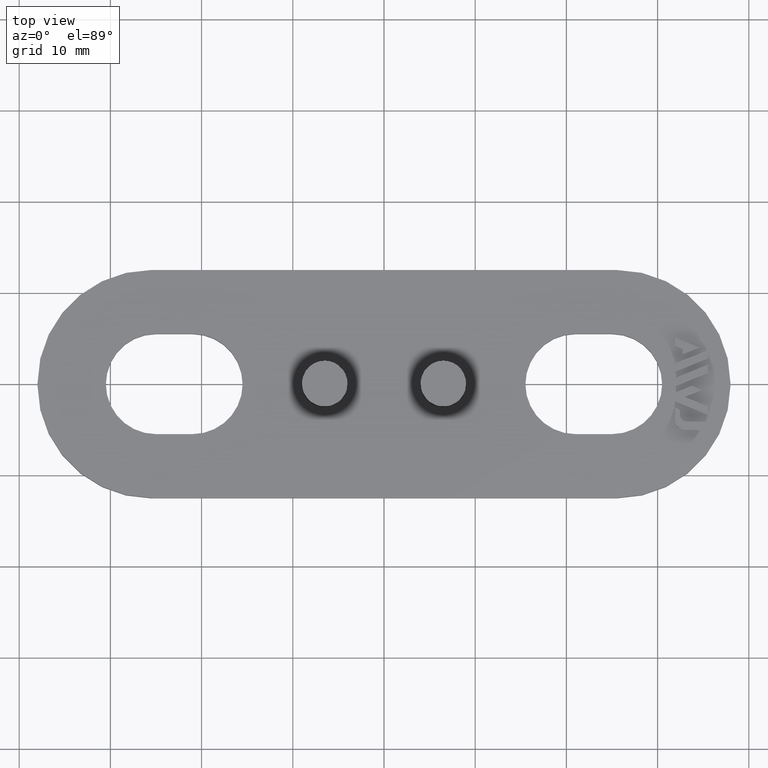
[diagram: clean part render]
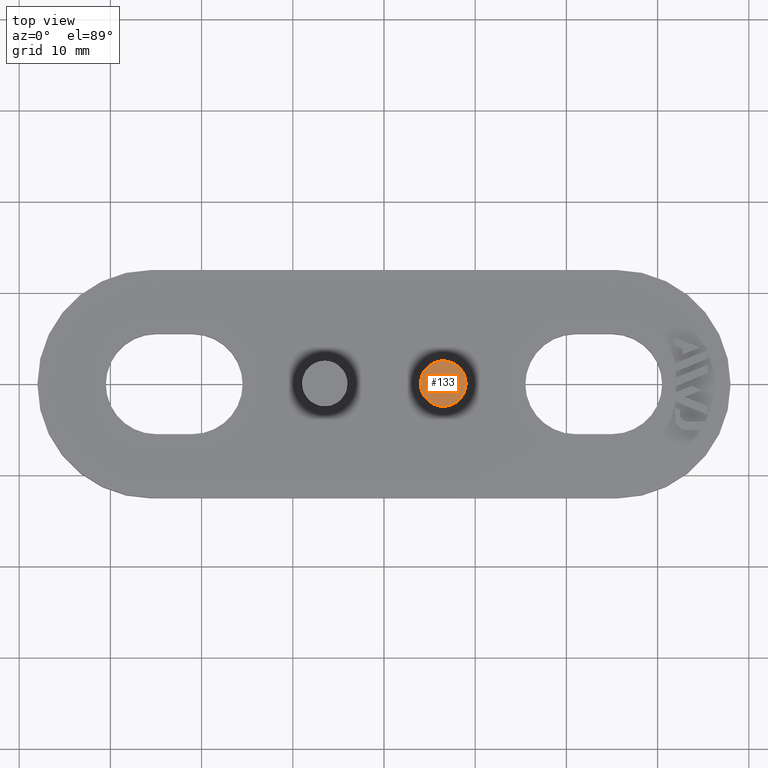
[diagram: same view with one face highlighted and labeled with its STEP entity id]
A machine part, top view. The second image highlights one B-rep face of the part: STEP entity #133.
In plain terms, the highlighted planar face has unit normal (0, -0, -1).
Its self-contained STEP definition (entity closure, byte-faithful):
#133 = ADVANCED_FACE( '', ( #276 ), #277, .F. );
#276 = FACE_OUTER_BOUND( '', #433, .T. );
#277 = PLANE( '', #434 );
#433 = EDGE_LOOP( '', ( #949 ) );
#434 = AXIS2_PLACEMENT_3D( '', #950, #951, #952 );
#949 = ORIENTED_EDGE( '', *, *, #1200, .F. );
#950 = CARTESIAN_POINT( '', ( 6.50000000000000, 3.36766747301154E-016, 5.50000000000001 ) );
#951 = DIRECTION( '', ( 0.000000000000000, -6.12303176911189E-017, -1.00000000000000 ) );
#952 = DIRECTION( '', ( 1.00000000000000, 6.12303176911189E-017, -3.74915180455534E-033 ) );
#1200 = EDGE_CURVE( '', #1496, #1496, #1497, .T. );
#1496 = VERTEX_POINT( '', #1934 );
#1497 = CIRCLE( '', #1935, 2.50000000000000 );
#1934 = CARTESIAN_POINT( '', ( 9.00000000000000, 4.89842541528951E-016, 5.50000000000001 ) );
#1935 = AXIS2_PLACEMENT_3D( '', #2180, #2181, #2182 );
#2180 = CARTESIAN_POINT( '', ( 6.50000000000000, 3.36766747301154E-016, 5.50000000000001 ) );
#2181 = DIRECTION( '', ( -4.37905770101505E-049, -6.12303176911189E-017, -1.00000000000000 ) );
#2182 = DIRECTION( '', ( 1.00000000000000, 6.12303176911189E-017, -3.74915180455534E-033 ) );